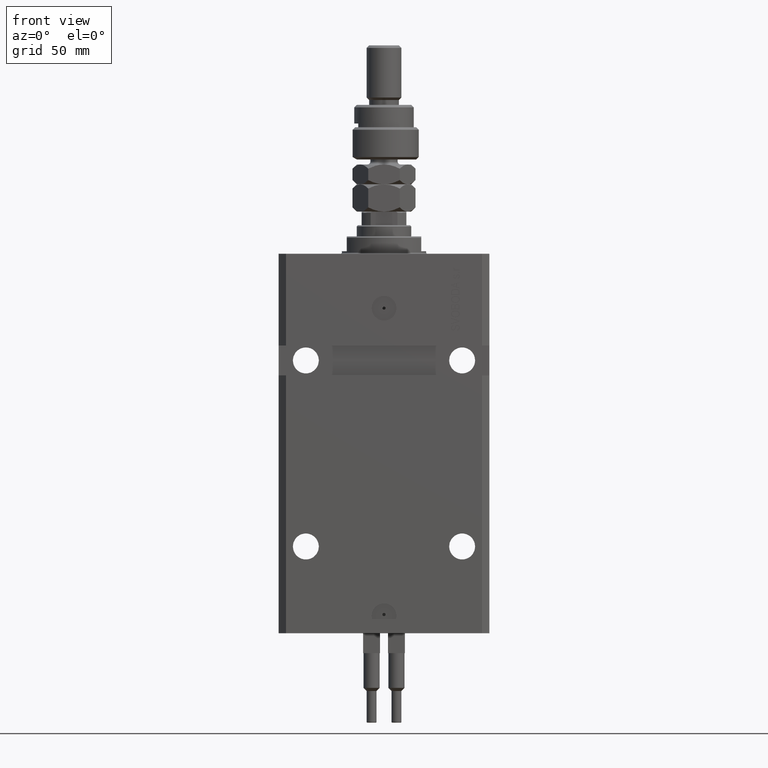
[diagram: clean part render]
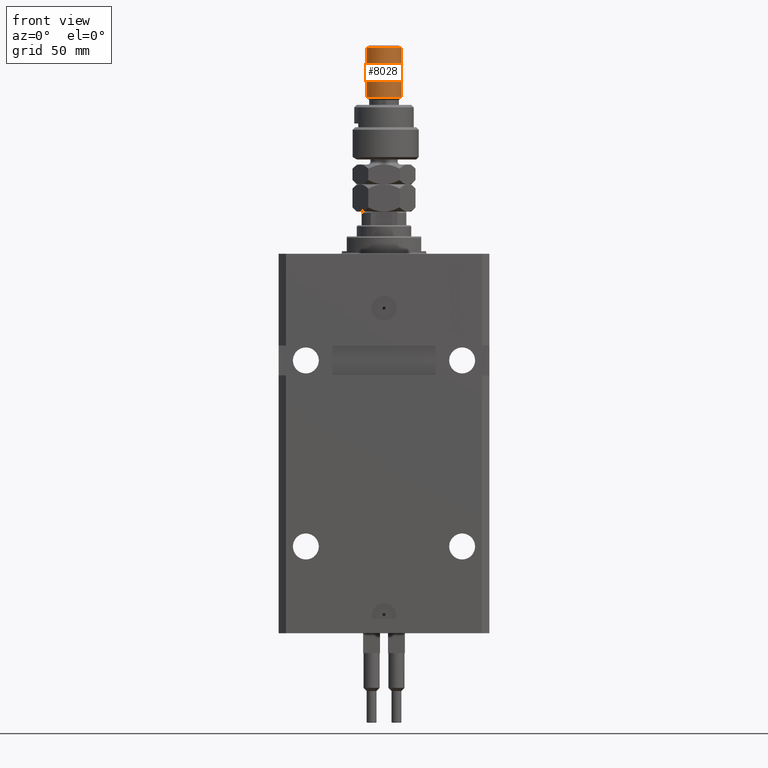
[diagram: same view with one face highlighted and labeled with its STEP entity id]
A machine part, front view. The second image highlights one B-rep face of the part: STEP entity #8028.
In plain terms, the highlighted cylindrical surface (edge-blend (fillet) strip) has radius 7 mm, axis along (-0, -0, -1).
Its self-contained STEP definition (entity closure, byte-faithful):
#358 = CIRCLE ( 'NONE', #29916, 7.000000000000000000 ) ;
#870 = AXIS2_PLACEMENT_3D ( 'NONE', #38522, #33762, #46972 ) ;
#3307 = CARTESIAN_POINT ( 'NONE',  ( -7.000000000000000000, 0.000000000000000000, 46.00000000000000000 ) ) ;
#3647 = CARTESIAN_POINT ( 'NONE',  ( -7.000000000000000000, 0.000000000000000000, 44.99999999999999289 ) ) ;
#5736 = FACE_OUTER_BOUND ( 'NONE', #14335, .T. ) ;
#8028 = ADVANCED_FACE ( 'NONE', ( #5736 ), #41973, .T. ) ;
#10490 = AXIS2_PLACEMENT_3D ( 'NONE', #38797, #27674, #31655 ) ;
#11762 = DIRECTION ( 'NONE',  ( 0.000000000000000000, 0.000000000000000000, -1.000000000000000000 ) ) ;
#13266 = VERTEX_POINT ( 'NONE', #3647 ) ;
#14335 = EDGE_LOOP ( 'NONE', ( #46528, #34313, #23527, #17661 ) ) ;
#14947 = LINE ( 'NONE', #46685, #31679 ) ;
#16542 = VERTEX_POINT ( 'NONE', #33730 ) ;
#17661 = ORIENTED_EDGE ( 'NONE', *, *, #43787, .T. ) ;
#23527 = ORIENTED_EDGE ( 'NONE', *, *, #37600, .T. ) ;
#23677 = DIRECTION ( 'NONE',  ( -0.000000000000000000, -0.000000000000000000, -1.000000000000000000 ) ) ;
#24199 = DIRECTION ( 'NONE',  ( 1.000000000000000000, 0.000000000000000000, 0.000000000000000000 ) ) ;
#25740 = EDGE_CURVE ( 'NONE', #31109, #13266, #358, .T. ) ;
#27674 = DIRECTION ( 'NONE',  ( -0.000000000000000000, -0.000000000000000000, 1.000000000000000000 ) ) ;
#28844 = CARTESIAN_POINT ( 'NONE',  ( 7.000000000000000000, 8.572527594031473190E-16, 44.99999999999999289 ) ) ;
#29055 = CIRCLE ( 'NONE', #10490, 7.000000000000000000 ) ;
#29916 = AXIS2_PLACEMENT_3D ( 'NONE', #32128, #11762, #24199 ) ;
#31078 = DIRECTION ( 'NONE',  ( -0.000000000000000000, -0.000000000000000000, -1.000000000000000000 ) ) ;
#31109 = VERTEX_POINT ( 'NONE', #28844 ) ;
#31336 = CARTESIAN_POINT ( 'NONE',  ( 7.000000000000000000, 8.572527594031473190E-16, 24.99999999999998934 ) ) ;
#31655 = DIRECTION ( 'NONE',  ( 1.000000000000000000, 0.000000000000000000, 0.000000000000000000 ) ) ;
#31679 = VECTOR ( 'NONE', #31078, 1000.000000000000000 ) ;
#32128 = CARTESIAN_POINT ( 'NONE',  ( 0.000000000000000000, 0.000000000000000000, 44.99999999999999289 ) ) ;
#33730 = CARTESIAN_POINT ( 'NONE',  ( -7.000000000000000000, 0.000000000000000000, 24.99999999999998934 ) ) ;
#33762 = DIRECTION ( 'NONE',  ( -0.000000000000000000, -0.000000000000000000, -1.000000000000000000 ) ) ;
#34313 = ORIENTED_EDGE ( 'NONE', *, *, #25740, .T. ) ;
#36612 = VERTEX_POINT ( 'NONE', #31336 ) ;
#37600 = EDGE_CURVE ( 'NONE', #13266, #16542, #39546, .T. ) ;
#38522 = CARTESIAN_POINT ( 'NONE',  ( 0.000000000000000000, 0.000000000000000000, 46.00000000000000000 ) ) ;
#38797 = CARTESIAN_POINT ( 'NONE',  ( 0.000000000000000000, 0.000000000000000000, 24.99999999999998934 ) ) ;
#39546 = LINE ( 'NONE', #3307, #45708 ) ;
#41973 = CYLINDRICAL_SURFACE ( 'NONE', #870, 7.000000000000000000 ) ;
#43787 = EDGE_CURVE ( 'NONE', #16542, #36612, #29055, .T. ) ;
#44831 = EDGE_CURVE ( 'NONE', #31109, #36612, #14947, .T. ) ;
#45708 = VECTOR ( 'NONE', #23677, 1000.000000000000000 ) ;
#46528 = ORIENTED_EDGE ( 'NONE', *, *, #44831, .F. ) ;
#46685 = CARTESIAN_POINT ( 'NONE',  ( 7.000000000000000000, 8.572527594031473190E-16, 46.00000000000000000 ) ) ;
#46972 = DIRECTION ( 'NONE',  ( -1.000000000000000000, 0.000000000000000000, 0.000000000000000000 ) ) ;